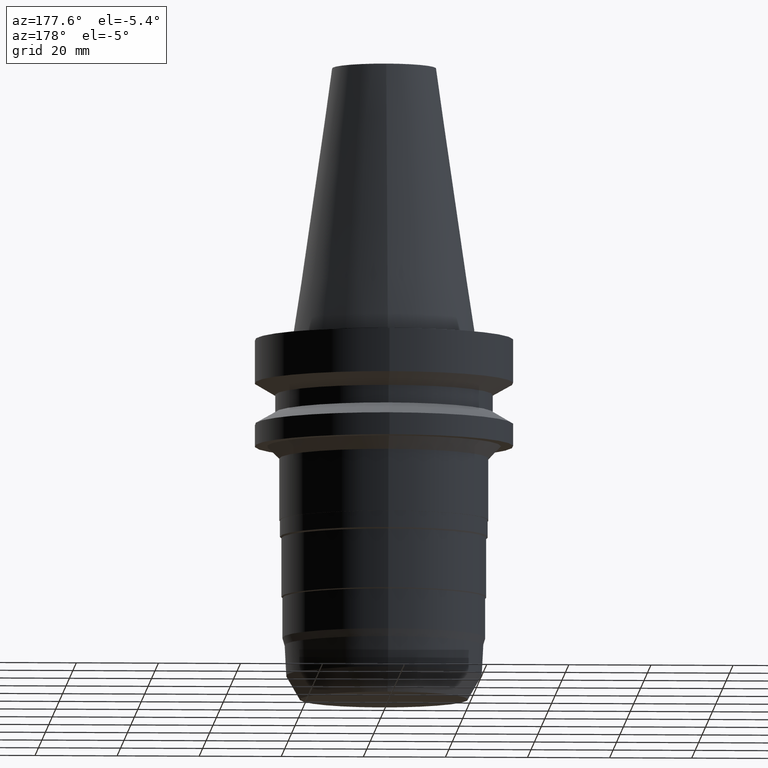
[diagram: clean part render]
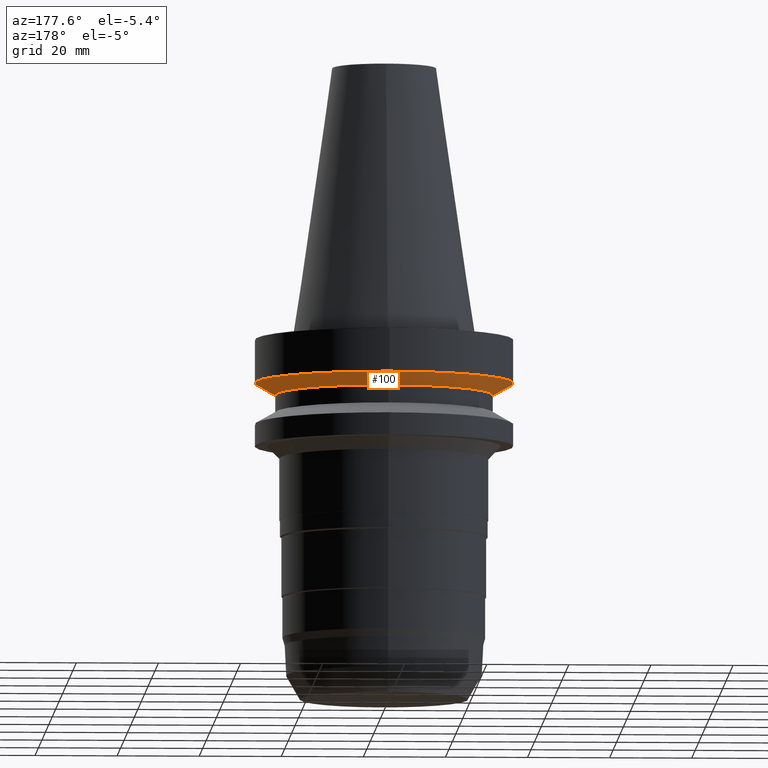
[diagram: same view with one face highlighted and labeled with its STEP entity id]
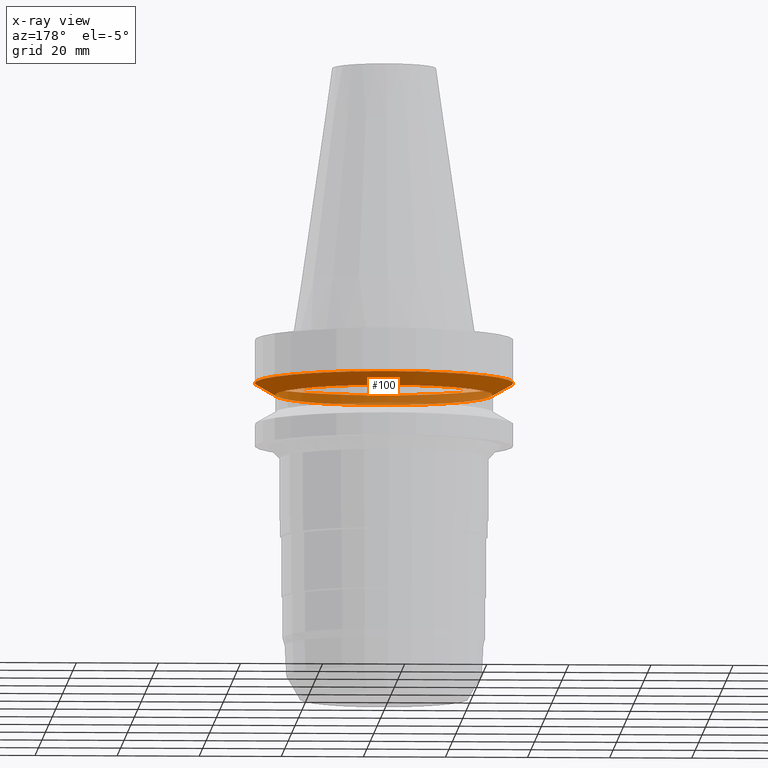
[diagram: x-ray of the same camera — body ghosted, the highlighted face saturated]
A machine part, auxiliary view. The second image highlights one B-rep face of the part: STEP entity #100.
The next image is the same camera in x-ray: the body ghosted, the highlighted face saturated — about 35% of this face is hidden behind the body in this view.
In plain terms, the highlighted conical surface has half-angle 60 deg.
Its self-contained STEP definition (entity closure, byte-faithful):
#97=EDGE_CURVE('Unnamed[1]',#241,#241,#242,.T.);
#100=ADVANCED_FACE('Unnamed[1]',(#245,#246),#247,.T.);
#121=EDGE_CURVE('Unnamed[1]',#280,#280,#281,.T.);
#241=VERTEX_POINT('',#433);
#242=CIRCLE('',#434,31.5000000000004);
#245=FACE_BOUND('',#438,.T.);
#246=FACE_BOUND('',#439,.T.);
#247=CONICAL_SURFACE('',#440,28.9999999999999,1.04719755119657);
#280=VERTEX_POINT('',#481);
#281=CIRCLE('',#482,26.4999999999995);
#433=CARTESIAN_POINT('',(7.08182973902924E-016,31.5000000000004,-11.5655056526664));
#434=AXIS2_PLACEMENT_3D('',#645,#646,#647);
#438=EDGE_LOOP('',(#649));
#439=EDGE_LOOP('',(#650));
#440=AXIS2_PLACEMENT_3D('',#651,#652,#653);
#481=CARTESIAN_POINT('',(8.8494551369045E-016,26.4999999999995,-14.4522569986152));
#482=AXIS2_PLACEMENT_3D('',#690,#691,#692);
#645=CARTESIAN_POINT('',(7.08182973902924E-016,1.41636594780585E-015,-11.5655056526664));
#646=DIRECTION('',(6.12323399573677E-017,1.22464679914769E-016,-1.0));
#647=DIRECTION('',(-1.23259516440782E-032,1.0,1.22464679914769E-016));
#649=ORIENTED_EDGE('',*,*,#121,.F.);
#650=ORIENTED_EDGE('',*,*,#97,.T.);
#651=CARTESIAN_POINT('',(7.96564243796687E-016,1.59312848759337E-015,-13.0088813256408));
#652=DIRECTION('',(-6.12323399573677E-017,-1.22464679914712E-016,1.0));
#653=DIRECTION('',(-1.23259516440783E-032,1.0,1.22464679914712E-016));
#690=CARTESIAN_POINT('',(8.8494551369045E-016,1.7698910273809E-015,-14.4522569986152));
#691=DIRECTION('',(6.12323399573677E-017,1.22464679914767E-016,-1.0));
#692=DIRECTION('',(-1.23259516440786E-032,1.0,1.22464679914767E-016));